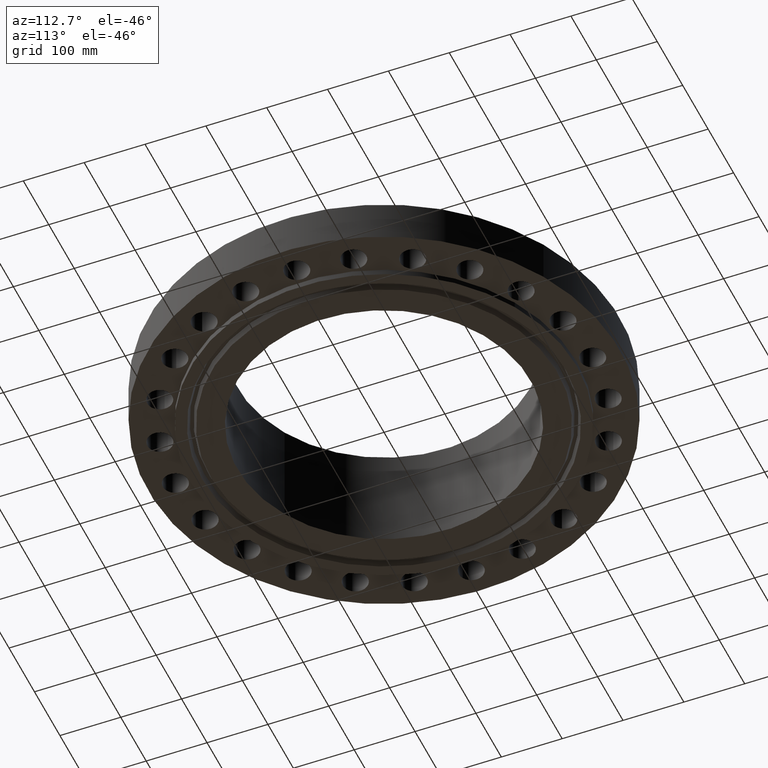
[diagram: clean part render]
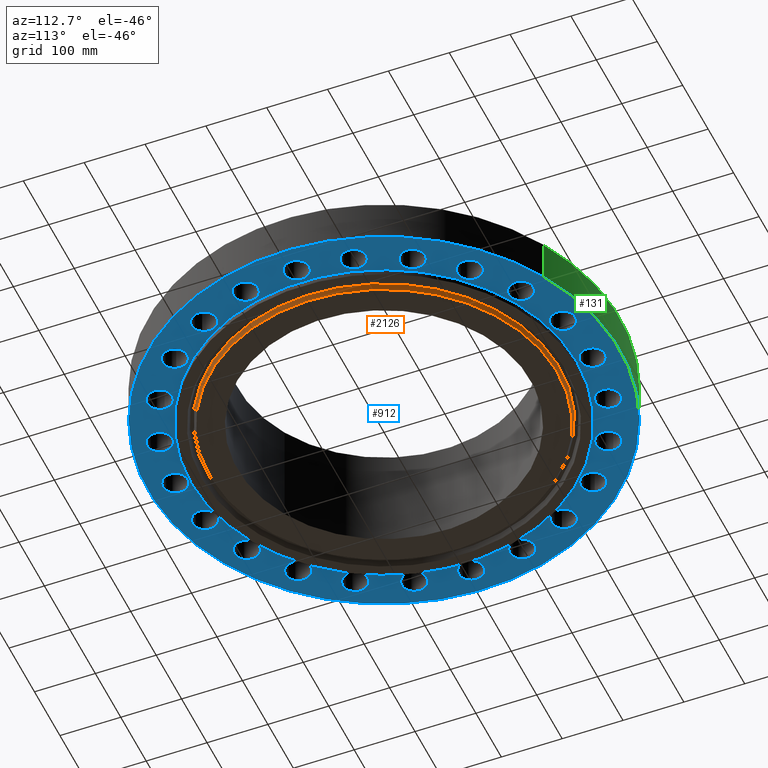
[diagram: same view with three faces highlighted in distinct colors, each labeled with its STEP entity id]
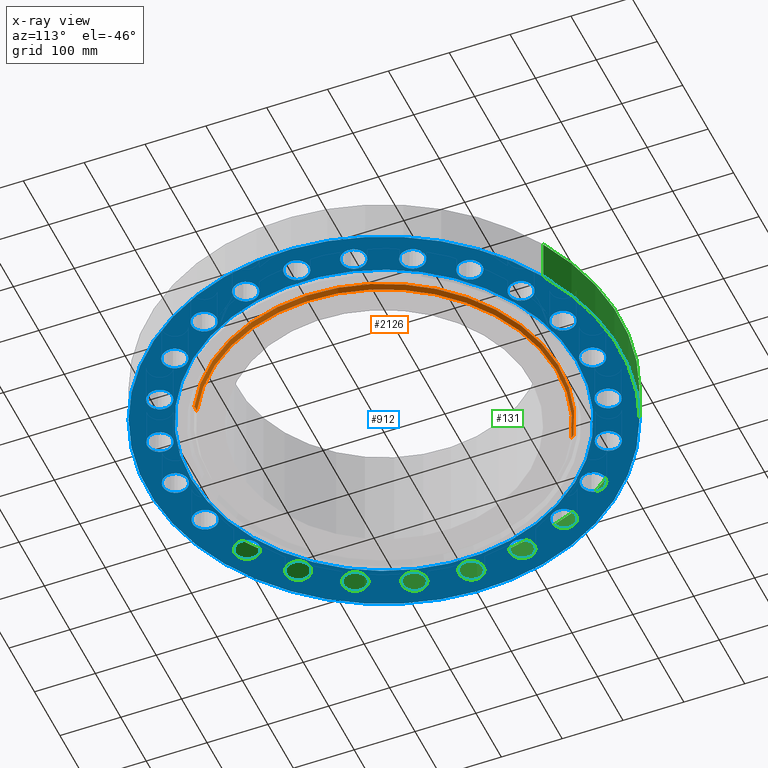
[diagram: x-ray of the same camera — body ghosted, the three highlighted faces saturated]
A machine part, auxiliary view with three faces highlighted in distinct colors.
The next image is the same camera in x-ray (body ghosted, the three faces saturated) — at least one of them is partly hidden behind the body in this view.
Their STEP definitions:

[orange] entity #2126 — the highlighted conical surface has half-angle 23 deg.
#1932=AXIS2_PLACEMENT_3D('Circle Axis2P3D',#1930,#1931,$) ;
#2076=AXIS2_PLACEMENT_3D('Circle Axis2P3D',#2074,#2075,$) ;
#2108=AXIS2_PLACEMENT_3D('Cone Axis2P3D',#2105,#2106,#2107) ;
#1930=CARTESIAN_POINT('Axis2P3D Location',(-1.1189649382E-015,0.,-0.375000000001)) ;
#1934=CARTESIAN_POINT('Vertex',(-5.38610621347,9.8592012916,-0.375000000001)) ;
#1936=CARTESIAN_POINT('Vertex',(5.38610621347,-9.8592012916,-0.375000000001)) ;
#2071=CARTESIAN_POINT('Vertex',(5.45460895105,-9.98459471164,-0.0383839389053)) ;
#2074=CARTESIAN_POINT('Axis2P3D Location',(0.,0.,-0.0383839389053)) ;
#2078=CARTESIAN_POINT('Vertex',(-5.45460895105,9.98459471164,-0.0383839389053)) ;
#2105=CARTESIAN_POINT('Axis2P3D Location',(0.,0.,-0.435000000002)) ;
#2110=CARTESIAN_POINT('Line Origine',(-5.42035758226,9.92189800162,-0.206691969453)) ;
#2115=CARTESIAN_POINT('Line Origine',(5.42035758226,-9.92189800162,-0.206691969453)) ;
#1931=DIRECTION('Axis2P3D Direction',(0.,0.,-0.0393700787402)) ;
#2075=DIRECTION('Axis2P3D Direction',(0.,0.,0.0393700787402)) ;
#2106=DIRECTION('Axis2P3D Direction',(0.,0.,0.0393700787402)) ;
#2107=DIRECTION('Axis2P3D XDirection',(-0.0188750212049,0.0345504945626,0.)) ;
#2111=DIRECTION('Vector Direction',(-0.00737505833565,0.0134999537303,0.0362403485611)) ;
#2116=DIRECTION('Vector Direction',(0.00737505833565,-0.0134999537303,0.0362403485611)) ;
#2112=VECTOR('Line Direction',#2111,0.0393700787402) ;
#2117=VECTOR('Line Direction',#2116,0.0393700787402) ;
#2121=ORIENTED_EDGE('',*,*,#2114,.F.) ;
#2122=ORIENTED_EDGE('',*,*,#2080,.F.) ;
#2123=ORIENTED_EDGE('',*,*,#2119,.T.) ;
#2124=ORIENTED_EDGE('',*,*,#1938,.F.) ;
#2126=ADVANCED_FACE('PartBody',(#2125),#2109,.T.) ;
#1933=CIRCLE('generated circle',#1932,11.2345) ;
#2077=CIRCLE('generated circle',#2076,11.3773850407) ;
#2109=CONICAL_SURFACE('Cone',#2108,11.2090315111,0.401425727959) ;
#1938=EDGE_CURVE('',#1935,#1937,#1933,.T.) ;
#2080=EDGE_CURVE('',#2072,#2079,#2077,.T.) ;
#2114=EDGE_CURVE('',#2079,#1935,#2113,.F.) ;
#2119=EDGE_CURVE('',#2072,#1937,#2118,.F.) ;
#2120=EDGE_LOOP('',(#2121,#2122,#2123,#2124)) ;
#2125=FACE_OUTER_BOUND('',#2120,.T.) ;
#2113=LINE('Line',#2110,#2112) ;
#2118=LINE('Line',#2115,#2117) ;
#1935=VERTEX_POINT('',#1934) ;
#1937=VERTEX_POINT('',#1936) ;
#2072=VERTEX_POINT('',#2071) ;
#2079=VERTEX_POINT('',#2078) ;

[blue] entity #912 — the highlighted planar face has unit normal (0, 0, -1).
#51=AXIS2_PLACEMENT_3D('Circle Axis2P3D',#49,#50,$) ;
#77=AXIS2_PLACEMENT_3D('Circle Axis2P3D',#75,#76,$) ;
#99=AXIS2_PLACEMENT_3D('Circle Axis2P3D',#97,#98,$) ;
#134=AXIS2_PLACEMENT_3D('Circle Axis2P3D',#132,#133,$) ;
#447=AXIS2_PLACEMENT_3D('Circle Axis2P3D',#445,#446,$) ;
#471=AXIS2_PLACEMENT_3D('Circle Axis2P3D',#469,#470,$) ;
#484=AXIS2_PLACEMENT_3D('Plane Axis2P3D',#481,#482,#483) ;
#500=AXIS2_PLACEMENT_3D('Circle Axis2P3D',#498,#499,$) ;
#509=AXIS2_PLACEMENT_3D('Circle Axis2P3D',#507,#508,$) ;
#518=AXIS2_PLACEMENT_3D('Circle Axis2P3D',#516,#517,$) ;
#527=AXIS2_PLACEMENT_3D('Circle Axis2P3D',#525,#526,$) ;
#536=AXIS2_PLACEMENT_3D('Circle Axis2P3D',#534,#535,$) ;
#545=AXIS2_PLACEMENT_3D('Circle Axis2P3D',#543,#544,$) ;
#554=AXIS2_PLACEMENT_3D('Circle Axis2P3D',#552,#553,$) ;
#563=AXIS2_PLACEMENT_3D('Circle Axis2P3D',#561,#562,$) ;
#572=AXIS2_PLACEMENT_3D('Circle Axis2P3D',#570,#571,$) ;
#581=AXIS2_PLACEMENT_3D('Circle Axis2P3D',#579,#580,$) ;
#590=AXIS2_PLACEMENT_3D('Circle Axis2P3D',#588,#589,$) ;
#599=AXIS2_PLACEMENT_3D('Circle Axis2P3D',#597,#598,$) ;
#608=AXIS2_PLACEMENT_3D('Circle Axis2P3D',#606,#607,$) ;
#617=AXIS2_PLACEMENT_3D('Circle Axis2P3D',#615,#616,$) ;
#626=AXIS2_PLACEMENT_3D('Circle Axis2P3D',#624,#625,$) ;
#635=AXIS2_PLACEMENT_3D('Circle Axis2P3D',#633,#634,$) ;
#644=AXIS2_PLACEMENT_3D('Circle Axis2P3D',#642,#643,$) ;
#653=AXIS2_PLACEMENT_3D('Circle Axis2P3D',#651,#652,$) ;
#662=AXIS2_PLACEMENT_3D('Circle Axis2P3D',#660,#661,$) ;
#671=AXIS2_PLACEMENT_3D('Circle Axis2P3D',#669,#670,$) ;
#680=AXIS2_PLACEMENT_3D('Circle Axis2P3D',#678,#679,$) ;
#689=AXIS2_PLACEMENT_3D('Circle Axis2P3D',#687,#688,$) ;
#698=AXIS2_PLACEMENT_3D('Circle Axis2P3D',#696,#697,$) ;
#707=AXIS2_PLACEMENT_3D('Circle Axis2P3D',#705,#706,$) ;
#716=AXIS2_PLACEMENT_3D('Circle Axis2P3D',#714,#715,$) ;
#725=AXIS2_PLACEMENT_3D('Circle Axis2P3D',#723,#724,$) ;
#734=AXIS2_PLACEMENT_3D('Circle Axis2P3D',#732,#733,$) ;
#743=AXIS2_PLACEMENT_3D('Circle Axis2P3D',#741,#742,$) ;
#752=AXIS2_PLACEMENT_3D('Circle Axis2P3D',#750,#751,$) ;
#761=AXIS2_PLACEMENT_3D('Circle Axis2P3D',#759,#760,$) ;
#770=AXIS2_PLACEMENT_3D('Circle Axis2P3D',#768,#769,$) ;
#779=AXIS2_PLACEMENT_3D('Circle Axis2P3D',#777,#778,$) ;
#788=AXIS2_PLACEMENT_3D('Circle Axis2P3D',#786,#787,$) ;
#797=AXIS2_PLACEMENT_3D('Circle Axis2P3D',#795,#796,$) ;
#806=AXIS2_PLACEMENT_3D('Circle Axis2P3D',#804,#805,$) ;
#815=AXIS2_PLACEMENT_3D('Circle Axis2P3D',#813,#814,$) ;
#824=AXIS2_PLACEMENT_3D('Circle Axis2P3D',#822,#823,$) ;
#833=AXIS2_PLACEMENT_3D('Circle Axis2P3D',#831,#832,$) ;
#842=AXIS2_PLACEMENT_3D('Circle Axis2P3D',#840,#841,$) ;
#851=AXIS2_PLACEMENT_3D('Circle Axis2P3D',#849,#850,$) ;
#860=AXIS2_PLACEMENT_3D('Circle Axis2P3D',#858,#859,$) ;
#869=AXIS2_PLACEMENT_3D('Circle Axis2P3D',#867,#868,$) ;
#878=AXIS2_PLACEMENT_3D('Circle Axis2P3D',#876,#877,$) ;
#887=AXIS2_PLACEMENT_3D('Circle Axis2P3D',#885,#886,$) ;
#896=AXIS2_PLACEMENT_3D('Circle Axis2P3D',#894,#895,$) ;
#905=AXIS2_PLACEMENT_3D('Circle Axis2P3D',#903,#904,$) ;
#44=CARTESIAN_POINT('Vertex',(-0.710841875134,13.8883346863,0.)) ;
#49=CARTESIAN_POINT('Axis2P3D Location',(0.,13.5000000001,0.)) ;
#53=CARTESIAN_POINT('Vertex',(0.710841875134,13.1116653138,0.)) ;
#75=CARTESIAN_POINT('Axis2P3D Location',(0.,13.5000000001,0.)) ;
#97=CARTESIAN_POINT('Axis2P3D Location',(0.,0.,1.67844740731E-015)) ;
#101=CARTESIAN_POINT('Vertex',(-7.31123946374,-13.3831340689,1.67844740731E-015)) ;
#103=CARTESIAN_POINT('Vertex',(7.31123946374,13.3831340689,1.67844740731E-015)) ;
#132=CARTESIAN_POINT('Axis2P3D Location',(0.,0.,1.67844740731E-015)) ;
#442=CARTESIAN_POINT('Vertex',(-5.99281923258,-10.9697820237,1.67844740731E-015)) ;
#445=CARTESIAN_POINT('Axis2P3D Location',(0.,0.,1.67844740731E-015)) ;
#449=CARTESIAN_POINT('Vertex',(5.99281923258,10.9697820237,1.67844740731E-015)) ;
#469=CARTESIAN_POINT('Axis2P3D Location',(0.,0.,1.67844740731E-015)) ;
#481=CARTESIAN_POINT('Axis2P3D Location',(0.,12.5000000001,0.)) ;
#498=CARTESIAN_POINT('Axis2P3D Location',(3.4940571089,13.039998655,0.)) ;
#502=CARTESIAN_POINT('Vertex',(2.90794499598,13.599080573,0.)) ;
#504=CARTESIAN_POINT('Vertex',(4.08016922182,12.4809167369,0.)) ;
#507=CARTESIAN_POINT('Axis2P3D Location',(3.4940571089,13.039998655,0.)) ;
#516=CARTESIAN_POINT('Axis2P3D Location',(6.75000000003,11.6913429511,0.)) ;
#520=CARTESIAN_POINT('Vertex',(6.32856022122,12.3830715922,0.)) ;
#522=CARTESIAN_POINT('Vertex',(7.17143977883,10.9996143101,0.)) ;
#525=CARTESIAN_POINT('Axis2P3D Location',(6.75000000003,11.6913429511,0.)) ;
#534=CARTESIAN_POINT('Axis2P3D Location',(9.54594154606,9.54594154606,0.)) ;
#538=CARTESIAN_POINT('Vertex',(9.31789452583,10.3231767463,0.)) ;
#540=CARTESIAN_POINT('Vertex',(9.77398856628,8.76870634577,0.)) ;
#543=CARTESIAN_POINT('Axis2P3D Location',(9.54594154606,9.54594154606,0.)) ;
#552=CARTESIAN_POINT('Axis2P3D Location',(11.6913429511,6.75000000003,0.)) ;
#556=CARTESIAN_POINT('Vertex',(11.6722297171,7.5597744651,0.)) ;
#558=CARTESIAN_POINT('Vertex',(11.7104561852,5.94022553495,0.)) ;
#561=CARTESIAN_POINT('Axis2P3D Location',(11.6913429511,6.75000000003,0.)) ;
#570=CARTESIAN_POINT('Axis2P3D Location',(13.039998655,3.4940571089,0.)) ;
#574=CARTESIAN_POINT('Vertex',(13.2311217423,4.28118604718,0.)) ;
#576=CARTESIAN_POINT('Vertex',(12.8488755676,2.70692817062,0.)) ;
#579=CARTESIAN_POINT('Axis2P3D Location',(13.039998655,3.4940571089,0.)) ;
#588=CARTESIAN_POINT('Axis2P3D Location',(13.5000000001,-2.23792987641E-015,0.)) ;
#592=CARTESIAN_POINT('Vertex',(13.8883346863,0.710841875134,0.)) ;
#594=CARTESIAN_POINT('Vertex',(13.1116653138,-0.710841875134,0.)) ;
#597=CARTESIAN_POINT('Axis2P3D Location',(13.5000000001,-2.23792987641E-015,0.)) ;
#606=CARTESIAN_POINT('Axis2P3D Location',(13.039998655,-3.4940571089,0.)) ;
#610=CARTESIAN_POINT('Vertex',(13.599080573,-2.90794499598,0.)) ;
#612=CARTESIAN_POINT('Vertex',(12.4809167369,-4.08016922182,-1.1189649382E-015)) ;
#615=CARTESIAN_POINT('Axis2P3D Location',(13.039998655,-3.4940571089,0.)) ;
#624=CARTESIAN_POINT('Axis2P3D Location',(11.6913429511,-6.75000000003,0.)) ;
#628=CARTESIAN_POINT('Vertex',(12.3830715922,-6.32856022122,0.)) ;
#630=CARTESIAN_POINT('Vertex',(10.9996143101,-7.17143977883,-2.23792987641E-015)) ;
#633=CARTESIAN_POINT('Axis2P3D Location',(11.6913429511,-6.75000000003,0.)) ;
#642=CARTESIAN_POINT('Axis2P3D Location',(9.54594154606,-9.54594154606,0.)) ;
#646=CARTESIAN_POINT('Vertex',(10.3231767463,-9.31789452583,0.)) ;
#648=CARTESIAN_POINT('Vertex',(8.76870634577,-9.77398856628,0.)) ;
#651=CARTESIAN_POINT('Axis2P3D Location',(9.54594154606,-9.54594154606,0.)) ;
#660=CARTESIAN_POINT('Axis2P3D Location',(6.75000000003,-11.6913429511,0.)) ;
#664=CARTESIAN_POINT('Vertex',(7.5597744651,-11.6722297171,0.)) ;
#666=CARTESIAN_POINT('Vertex',(5.94022553495,-11.7104561852,0.)) ;
#669=CARTESIAN_POINT('Axis2P3D Location',(6.75000000003,-11.6913429511,0.)) ;
#678=CARTESIAN_POINT('Axis2P3D Location',(3.4940571089,-13.039998655,0.)) ;
#682=CARTESIAN_POINT('Vertex',(4.28118604718,-13.2311217423,0.)) ;
#684=CARTESIAN_POINT('Vertex',(2.70692817062,-12.8488755676,0.)) ;
#687=CARTESIAN_POINT('Axis2P3D Location',(3.4940571089,-13.039998655,0.)) ;
#696=CARTESIAN_POINT('Axis2P3D Location',(1.60851209867E-015,-13.5000000001,0.)) ;
#700=CARTESIAN_POINT('Vertex',(0.710841875134,-13.8883346863,0.)) ;
#702=CARTESIAN_POINT('Vertex',(-0.710841875134,-13.1116653138,0.)) ;
#705=CARTESIAN_POINT('Axis2P3D Location',(1.67844740731E-015,-13.5000000001,0.)) ;
#714=CARTESIAN_POINT('Axis2P3D Location',(-3.4940571089,-13.039998655,0.)) ;
#718=CARTESIAN_POINT('Vertex',(-2.90794499598,-13.599080573,0.)) ;
#720=CARTESIAN_POINT('Vertex',(-4.08016922182,-12.4809167369,0.)) ;
#723=CARTESIAN_POINT('Axis2P3D Location',(-3.4940571089,-13.039998655,0.)) ;
#732=CARTESIAN_POINT('Axis2P3D Location',(-6.75000000003,-11.6913429511,0.)) ;
#736=CARTESIAN_POINT('Vertex',(-6.32856022122,-12.3830715922,0.)) ;
#738=CARTESIAN_POINT('Vertex',(-7.17143977883,-10.9996143101,0.)) ;
#741=CARTESIAN_POINT('Axis2P3D Location',(-6.75000000003,-11.6913429511,0.)) ;
#750=CARTESIAN_POINT('Axis2P3D Location',(-9.54594154606,-9.54594154606,0.)) ;
#754=CARTESIAN_POINT('Vertex',(-9.31789452583,-10.3231767463,0.)) ;
#756=CARTESIAN_POINT('Vertex',(-9.77398856628,-8.76870634577,0.)) ;
#759=CARTESIAN_POINT('Axis2P3D Location',(-9.54594154606,-9.54594154606,0.)) ;
#768=CARTESIAN_POINT('Axis2P3D Location',(-11.6913429511,-6.75000000003,0.)) ;
#772=CARTESIAN_POINT('Vertex',(-11.6722297171,-7.5597744651,0.)) ;
#774=CARTESIAN_POINT('Vertex',(-11.7104561852,-5.94022553495,0.)) ;
#777=CARTESIAN_POINT('Axis2P3D Location',(-11.6913429511,-6.75000000003,0.)) ;
#786=CARTESIAN_POINT('Axis2P3D Location',(-13.039998655,-3.4940571089,0.)) ;
#790=CARTESIAN_POINT('Vertex',(-13.2311217423,-4.28118604718,0.)) ;
#792=CARTESIAN_POINT('Vertex',(-12.8488755676,-2.70692817062,0.)) ;
#795=CARTESIAN_POINT('Axis2P3D Location',(-13.039998655,-3.4940571089,0.)) ;
#804=CARTESIAN_POINT('Axis2P3D Location',(-13.5000000001,-2.23792987641E-015,0.)) ;
#808=CARTESIAN_POINT('Vertex',(-13.8883346863,-0.710841875134,0.)) ;
#810=CARTESIAN_POINT('Vertex',(-13.1116653138,0.710841875134,0.)) ;
#813=CARTESIAN_POINT('Axis2P3D Location',(-13.5000000001,-2.23792987641E-015,0.)) ;
#822=CARTESIAN_POINT('Axis2P3D Location',(-13.039998655,3.4940571089,0.)) ;
#826=CARTESIAN_POINT('Vertex',(-13.599080573,2.90794499598,0.)) ;
#828=CARTESIAN_POINT('Vertex',(-12.4809167369,4.08016922182,0.)) ;
#831=CARTESIAN_POINT('Axis2P3D Location',(-13.039998655,3.4940571089,0.)) ;
#840=CARTESIAN_POINT('Axis2P3D Location',(-11.6913429511,6.75000000003,0.)) ;
#844=CARTESIAN_POINT('Vertex',(-12.3830715922,6.32856022122,0.)) ;
#846=CARTESIAN_POINT('Vertex',(-10.9996143101,7.17143977883,0.)) ;
#849=CARTESIAN_POINT('Axis2P3D Location',(-11.6913429511,6.75000000003,0.)) ;
#858=CARTESIAN_POINT('Axis2P3D Location',(-9.54594154606,9.54594154606,0.)) ;
#862=CARTESIAN_POINT('Vertex',(-10.3231767463,9.31789452583,0.)) ;
#864=CARTESIAN_POINT('Vertex',(-8.76870634577,9.77398856628,0.)) ;
#867=CARTESIAN_POINT('Axis2P3D Location',(-9.54594154606,9.54594154606,0.)) ;
#876=CARTESIAN_POINT('Axis2P3D Location',(-6.75000000003,11.6913429511,0.)) ;
#880=CARTESIAN_POINT('Vertex',(-7.5597744651,11.6722297171,0.)) ;
#882=CARTESIAN_POINT('Vertex',(-5.94022553495,11.7104561852,0.)) ;
#885=CARTESIAN_POINT('Axis2P3D Location',(-6.75000000003,11.6913429511,0.)) ;
#894=CARTESIAN_POINT('Axis2P3D Location',(-3.4940571089,13.039998655,0.)) ;
#898=CARTESIAN_POINT('Vertex',(-4.28118604718,13.2311217423,0.)) ;
#900=CARTESIAN_POINT('Vertex',(-2.70692817062,12.8488755676,0.)) ;
#903=CARTESIAN_POINT('Axis2P3D Location',(-3.4940571089,13.039998655,0.)) ;
#50=DIRECTION('Axis2P3D Direction',(0.,-0.,-0.0393700787402)) ;
#76=DIRECTION('Axis2P3D Direction',(0.,-0.,-0.0393700787402)) ;
#98=DIRECTION('Axis2P3D Direction',(0.,0.,-0.0393700787402)) ;
#133=DIRECTION('Axis2P3D Direction',(0.,0.,-0.0393700787402)) ;
#446=DIRECTION('Axis2P3D Direction',(0.,0.,-0.0393700787402)) ;
#470=DIRECTION('Axis2P3D Direction',(0.,0.,-0.0393700787402)) ;
#482=DIRECTION('Axis2P3D Direction',(0.,0.,-0.0393700787402)) ;
#483=DIRECTION('Axis2P3D XDirection',(0.0393700787402,0.,0.)) ;
#499=DIRECTION('Axis2P3D Direction',(0.,0.,-0.0393700787402)) ;
#508=DIRECTION('Axis2P3D Direction',(0.,0.,-0.0393700787402)) ;
#517=DIRECTION('Axis2P3D Direction',(0.,0.,-0.0393700787402)) ;
#526=DIRECTION('Axis2P3D Direction',(0.,0.,-0.0393700787402)) ;
#535=DIRECTION('Axis2P3D Direction',(0.,0.,-0.0393700787402)) ;
#544=DIRECTION('Axis2P3D Direction',(0.,0.,-0.0393700787402)) ;
#553=DIRECTION('Axis2P3D Direction',(0.,0.,-0.0393700787402)) ;
#562=DIRECTION('Axis2P3D Direction',(0.,0.,-0.0393700787402)) ;
#571=DIRECTION('Axis2P3D Direction',(0.,0.,-0.0393700787402)) ;
#580=DIRECTION('Axis2P3D Direction',(0.,0.,-0.0393700787402)) ;
#589=DIRECTION('Axis2P3D Direction',(0.,0.,-0.0393700787402)) ;
#598=DIRECTION('Axis2P3D Direction',(0.,0.,-0.0393700787402)) ;
#607=DIRECTION('Axis2P3D Direction',(0.,0.,-0.0393700787402)) ;
#616=DIRECTION('Axis2P3D Direction',(0.,0.,-0.0393700787402)) ;
#625=DIRECTION('Axis2P3D Direction',(0.,0.,-0.0393700787402)) ;
#634=DIRECTION('Axis2P3D Direction',(0.,0.,-0.0393700787402)) ;
#643=DIRECTION('Axis2P3D Direction',(0.,0.,-0.0393700787402)) ;
#652=DIRECTION('Axis2P3D Direction',(0.,0.,-0.0393700787402)) ;
#661=DIRECTION('Axis2P3D Direction',(0.,0.,-0.0393700787402)) ;
#670=DIRECTION('Axis2P3D Direction',(0.,0.,-0.0393700787402)) ;
#679=DIRECTION('Axis2P3D Direction',(0.,0.,-0.0393700787402)) ;
#688=DIRECTION('Axis2P3D Direction',(0.,0.,-0.0393700787402)) ;
#697=DIRECTION('Axis2P3D Direction',(0.,0.,-0.0393700787402)) ;
#706=DIRECTION('Axis2P3D Direction',(0.,0.,-0.0393700787402)) ;
#715=DIRECTION('Axis2P3D Direction',(0.,0.,-0.0393700787402)) ;
#724=DIRECTION('Axis2P3D Direction',(0.,0.,-0.0393700787402)) ;
#733=DIRECTION('Axis2P3D Direction',(0.,0.,-0.0393700787402)) ;
#742=DIRECTION('Axis2P3D Direction',(0.,0.,-0.0393700787402)) ;
#751=DIRECTION('Axis2P3D Direction',(0.,0.,-0.0393700787402)) ;
#760=DIRECTION('Axis2P3D Direction',(0.,0.,-0.0393700787402)) ;
#769=DIRECTION('Axis2P3D Direction',(0.,0.,-0.0393700787402)) ;
#778=DIRECTION('Axis2P3D Direction',(0.,0.,-0.0393700787402)) ;
#787=DIRECTION('Axis2P3D Direction',(0.,0.,-0.0393700787402)) ;
#796=DIRECTION('Axis2P3D Direction',(0.,0.,-0.0393700787402)) ;
#805=DIRECTION('Axis2P3D Direction',(0.,0.,-0.0393700787402)) ;
#814=DIRECTION('Axis2P3D Direction',(0.,0.,-0.0393700787402)) ;
#823=DIRECTION('Axis2P3D Direction',(0.,0.,-0.0393700787402)) ;
#832=DIRECTION('Axis2P3D Direction',(0.,0.,-0.0393700787402)) ;
#841=DIRECTION('Axis2P3D Direction',(0.,0.,-0.0393700787402)) ;
#850=DIRECTION('Axis2P3D Direction',(0.,0.,-0.0393700787402)) ;
#859=DIRECTION('Axis2P3D Direction',(0.,0.,-0.0393700787402)) ;
#868=DIRECTION('Axis2P3D Direction',(0.,0.,-0.0393700787402)) ;
#877=DIRECTION('Axis2P3D Direction',(0.,0.,-0.0393700787402)) ;
#886=DIRECTION('Axis2P3D Direction',(0.,0.,-0.0393700787402)) ;
#895=DIRECTION('Axis2P3D Direction',(0.,0.,-0.0393700787402)) ;
#904=DIRECTION('Axis2P3D Direction',(0.,0.,-0.0393700787402)) ;
#487=ORIENTED_EDGE('',*,*,#105,.T.) ;
#488=ORIENTED_EDGE('',*,*,#136,.T.) ;
#491=ORIENTED_EDGE('',*,*,#79,.F.) ;
#492=ORIENTED_EDGE('',*,*,#55,.F.) ;
#495=ORIENTED_EDGE('',*,*,#473,.F.) ;
#496=ORIENTED_EDGE('',*,*,#451,.F.) ;
#513=ORIENTED_EDGE('',*,*,#506,.F.) ;
#514=ORIENTED_EDGE('',*,*,#511,.F.) ;
#531=ORIENTED_EDGE('',*,*,#524,.F.) ;
#532=ORIENTED_EDGE('',*,*,#529,.F.) ;
#549=ORIENTED_EDGE('',*,*,#542,.F.) ;
#550=ORIENTED_EDGE('',*,*,#547,.F.) ;
#567=ORIENTED_EDGE('',*,*,#560,.F.) ;
#568=ORIENTED_EDGE('',*,*,#565,.F.) ;
#585=ORIENTED_EDGE('',*,*,#578,.F.) ;
#586=ORIENTED_EDGE('',*,*,#583,.F.) ;
#603=ORIENTED_EDGE('',*,*,#596,.F.) ;
#604=ORIENTED_EDGE('',*,*,#601,.F.) ;
#621=ORIENTED_EDGE('',*,*,#614,.F.) ;
#622=ORIENTED_EDGE('',*,*,#619,.F.) ;
#639=ORIENTED_EDGE('',*,*,#632,.F.) ;
#640=ORIENTED_EDGE('',*,*,#637,.F.) ;
#657=ORIENTED_EDGE('',*,*,#650,.F.) ;
#658=ORIENTED_EDGE('',*,*,#655,.F.) ;
#675=ORIENTED_EDGE('',*,*,#668,.F.) ;
#676=ORIENTED_EDGE('',*,*,#673,.F.) ;
#693=ORIENTED_EDGE('',*,*,#686,.F.) ;
#694=ORIENTED_EDGE('',*,*,#691,.F.) ;
#711=ORIENTED_EDGE('',*,*,#704,.F.) ;
#712=ORIENTED_EDGE('',*,*,#709,.F.) ;
#729=ORIENTED_EDGE('',*,*,#722,.F.) ;
#730=ORIENTED_EDGE('',*,*,#727,.F.) ;
#747=ORIENTED_EDGE('',*,*,#740,.F.) ;
#748=ORIENTED_EDGE('',*,*,#745,.F.) ;
#765=ORIENTED_EDGE('',*,*,#758,.F.) ;
#766=ORIENTED_EDGE('',*,*,#763,.F.) ;
#783=ORIENTED_EDGE('',*,*,#776,.F.) ;
#784=ORIENTED_EDGE('',*,*,#781,.F.) ;
#801=ORIENTED_EDGE('',*,*,#794,.F.) ;
#802=ORIENTED_EDGE('',*,*,#799,.F.) ;
#819=ORIENTED_EDGE('',*,*,#812,.F.) ;
#820=ORIENTED_EDGE('',*,*,#817,.F.) ;
#837=ORIENTED_EDGE('',*,*,#830,.F.) ;
#838=ORIENTED_EDGE('',*,*,#835,.F.) ;
#855=ORIENTED_EDGE('',*,*,#848,.F.) ;
#856=ORIENTED_EDGE('',*,*,#853,.F.) ;
#873=ORIENTED_EDGE('',*,*,#866,.F.) ;
#874=ORIENTED_EDGE('',*,*,#871,.F.) ;
#891=ORIENTED_EDGE('',*,*,#884,.F.) ;
#892=ORIENTED_EDGE('',*,*,#889,.F.) ;
#909=ORIENTED_EDGE('',*,*,#902,.F.) ;
#910=ORIENTED_EDGE('',*,*,#907,.F.) ;
#493=FACE_BOUND('',#490,.T.) ;
#497=FACE_BOUND('',#494,.T.) ;
#515=FACE_BOUND('',#512,.T.) ;
#533=FACE_BOUND('',#530,.T.) ;
#551=FACE_BOUND('',#548,.T.) ;
#569=FACE_BOUND('',#566,.T.) ;
#587=FACE_BOUND('',#584,.T.) ;
#605=FACE_BOUND('',#602,.T.) ;
#623=FACE_BOUND('',#620,.T.) ;
#641=FACE_BOUND('',#638,.T.) ;
#659=FACE_BOUND('',#656,.T.) ;
#677=FACE_BOUND('',#674,.T.) ;
#695=FACE_BOUND('',#692,.T.) ;
#713=FACE_BOUND('',#710,.T.) ;
#731=FACE_BOUND('',#728,.T.) ;
#749=FACE_BOUND('',#746,.T.) ;
#767=FACE_BOUND('',#764,.T.) ;
#785=FACE_BOUND('',#782,.T.) ;
#803=FACE_BOUND('',#800,.T.) ;
#821=FACE_BOUND('',#818,.T.) ;
#839=FACE_BOUND('',#836,.T.) ;
#857=FACE_BOUND('',#854,.T.) ;
#875=FACE_BOUND('',#872,.T.) ;
#893=FACE_BOUND('',#890,.T.) ;
#911=FACE_BOUND('',#908,.T.) ;
#912=ADVANCED_FACE('PartBody',(#489,#493,#497,#515,#533,#551,#569,#587,#605,#623,#641,#659,#677,#695,#713,#731,#749,#767,#785,#803,#821,#839,#857,#875,#893,#911),#485,.T.) ;
#52=CIRCLE('generated circle',#51,0.810000000003) ;
#78=CIRCLE('generated circle',#77,0.810000000003) ;
#100=CIRCLE('generated circle',#99,15.2500000001) ;
#135=CIRCLE('generated circle',#134,15.2500000001) ;
#448=CIRCLE('generated circle',#447,12.5000000001) ;
#472=CIRCLE('generated circle',#471,12.5000000001) ;
#501=CIRCLE('generated circle',#500,0.810000000003) ;
#510=CIRCLE('generated circle',#509,0.810000000003) ;
#519=CIRCLE('generated circle',#518,0.810000000003) ;
#528=CIRCLE('generated circle',#527,0.810000000003) ;
#537=CIRCLE('generated circle',#536,0.810000000003) ;
#546=CIRCLE('generated circle',#545,0.810000000003) ;
#555=CIRCLE('generated circle',#554,0.810000000003) ;
#564=CIRCLE('generated circle',#563,0.810000000003) ;
#573=CIRCLE('generated circle',#572,0.810000000003) ;
#582=CIRCLE('generated circle',#581,0.810000000003) ;
#591=CIRCLE('generated circle',#590,0.810000000003) ;
#600=CIRCLE('generated circle',#599,0.810000000003) ;
#609=CIRCLE('generated circle',#608,0.810000000003) ;
#618=CIRCLE('generated circle',#617,0.810000000003) ;
#627=CIRCLE('generated circle',#626,0.810000000003) ;
#636=CIRCLE('generated circle',#635,0.810000000003) ;
#645=CIRCLE('generated circle',#644,0.810000000003) ;
#654=CIRCLE('generated circle',#653,0.810000000003) ;
#663=CIRCLE('generated circle',#662,0.810000000003) ;
#672=CIRCLE('generated circle',#671,0.810000000003) ;
#681=CIRCLE('generated circle',#680,0.810000000003) ;
#690=CIRCLE('generated circle',#689,0.810000000003) ;
#699=CIRCLE('generated circle',#698,0.810000000003) ;
#708=CIRCLE('generated circle',#707,0.810000000003) ;
#717=CIRCLE('generated circle',#716,0.810000000003) ;
#726=CIRCLE('generated circle',#725,0.810000000003) ;
#735=CIRCLE('generated circle',#734,0.810000000003) ;
#744=CIRCLE('generated circle',#743,0.810000000003) ;
#753=CIRCLE('generated circle',#752,0.810000000003) ;
#762=CIRCLE('generated circle',#761,0.810000000003) ;
#771=CIRCLE('generated circle',#770,0.810000000003) ;
#780=CIRCLE('generated circle',#779,0.810000000003) ;
#789=CIRCLE('generated circle',#788,0.810000000003) ;
#798=CIRCLE('generated circle',#797,0.810000000003) ;
#807=CIRCLE('generated circle',#806,0.810000000003) ;
#816=CIRCLE('generated circle',#815,0.810000000003) ;
#825=CIRCLE('generated circle',#824,0.810000000003) ;
#834=CIRCLE('generated circle',#833,0.810000000003) ;
#843=CIRCLE('generated circle',#842,0.810000000003) ;
#852=CIRCLE('generated circle',#851,0.810000000003) ;
#861=CIRCLE('generated circle',#860,0.810000000003) ;
#870=CIRCLE('generated circle',#869,0.810000000003) ;
#879=CIRCLE('generated circle',#878,0.810000000003) ;
#888=CIRCLE('generated circle',#887,0.810000000003) ;
#897=CIRCLE('generated circle',#896,0.810000000003) ;
#906=CIRCLE('generated circle',#905,0.810000000003) ;
#55=EDGE_CURVE('',#45,#54,#52,.T.) ;
#79=EDGE_CURVE('',#54,#45,#78,.T.) ;
#105=EDGE_CURVE('',#102,#104,#100,.T.) ;
#136=EDGE_CURVE('',#104,#102,#135,.T.) ;
#451=EDGE_CURVE('',#443,#450,#448,.T.) ;
#473=EDGE_CURVE('',#450,#443,#472,.T.) ;
#506=EDGE_CURVE('',#503,#505,#501,.T.) ;
#511=EDGE_CURVE('',#505,#503,#510,.T.) ;
#524=EDGE_CURVE('',#521,#523,#519,.T.) ;
#529=EDGE_CURVE('',#523,#521,#528,.T.) ;
#542=EDGE_CURVE('',#539,#541,#537,.T.) ;
#547=EDGE_CURVE('',#541,#539,#546,.T.) ;
#560=EDGE_CURVE('',#557,#559,#555,.T.) ;
#565=EDGE_CURVE('',#559,#557,#564,.T.) ;
#578=EDGE_CURVE('',#575,#577,#573,.T.) ;
#583=EDGE_CURVE('',#577,#575,#582,.T.) ;
#596=EDGE_CURVE('',#593,#595,#591,.T.) ;
#601=EDGE_CURVE('',#595,#593,#600,.T.) ;
#614=EDGE_CURVE('',#611,#613,#609,.T.) ;
#619=EDGE_CURVE('',#613,#611,#618,.T.) ;
#632=EDGE_CURVE('',#629,#631,#627,.T.) ;
#637=EDGE_CURVE('',#631,#629,#636,.T.) ;
#650=EDGE_CURVE('',#647,#649,#645,.T.) ;
#655=EDGE_CURVE('',#649,#647,#654,.T.) ;
#668=EDGE_CURVE('',#665,#667,#663,.T.) ;
#673=EDGE_CURVE('',#667,#665,#672,.T.) ;
#686=EDGE_CURVE('',#683,#685,#681,.T.) ;
#691=EDGE_CURVE('',#685,#683,#690,.T.) ;
#704=EDGE_CURVE('',#701,#703,#699,.T.) ;
#709=EDGE_CURVE('',#703,#701,#708,.T.) ;
#722=EDGE_CURVE('',#719,#721,#717,.T.) ;
#727=EDGE_CURVE('',#721,#719,#726,.T.) ;
#740=EDGE_CURVE('',#737,#739,#735,.T.) ;
#745=EDGE_CURVE('',#739,#737,#744,.T.) ;
#758=EDGE_CURVE('',#755,#757,#753,.T.) ;
#763=EDGE_CURVE('',#757,#755,#762,.T.) ;
#776=EDGE_CURVE('',#773,#775,#771,.T.) ;
#781=EDGE_CURVE('',#775,#773,#780,.T.) ;
#794=EDGE_CURVE('',#791,#793,#789,.T.) ;
#799=EDGE_CURVE('',#793,#791,#798,.T.) ;
#812=EDGE_CURVE('',#809,#811,#807,.T.) ;
#817=EDGE_CURVE('',#811,#809,#816,.T.) ;
#830=EDGE_CURVE('',#827,#829,#825,.T.) ;
#835=EDGE_CURVE('',#829,#827,#834,.T.) ;
#848=EDGE_CURVE('',#845,#847,#843,.T.) ;
#853=EDGE_CURVE('',#847,#845,#852,.T.) ;
#866=EDGE_CURVE('',#863,#865,#861,.T.) ;
#871=EDGE_CURVE('',#865,#863,#870,.T.) ;
#884=EDGE_CURVE('',#881,#883,#879,.T.) ;
#889=EDGE_CURVE('',#883,#881,#888,.T.) ;
#902=EDGE_CURVE('',#899,#901,#897,.T.) ;
#907=EDGE_CURVE('',#901,#899,#906,.T.) ;
#486=EDGE_LOOP('',(#487,#488)) ;
#490=EDGE_LOOP('',(#491,#492)) ;
#494=EDGE_LOOP('',(#495,#496)) ;
#512=EDGE_LOOP('',(#513,#514)) ;
#530=EDGE_LOOP('',(#531,#532)) ;
#548=EDGE_LOOP('',(#549,#550)) ;
#566=EDGE_LOOP('',(#567,#568)) ;
#584=EDGE_LOOP('',(#585,#586)) ;
#602=EDGE_LOOP('',(#603,#604)) ;
#620=EDGE_LOOP('',(#621,#622)) ;
#638=EDGE_LOOP('',(#639,#640)) ;
#656=EDGE_LOOP('',(#657,#658)) ;
#674=EDGE_LOOP('',(#675,#676)) ;
#692=EDGE_LOOP('',(#693,#694)) ;
#710=EDGE_LOOP('',(#711,#712)) ;
#728=EDGE_LOOP('',(#729,#730)) ;
#746=EDGE_LOOP('',(#747,#748)) ;
#764=EDGE_LOOP('',(#765,#766)) ;
#782=EDGE_LOOP('',(#783,#784)) ;
#800=EDGE_LOOP('',(#801,#802)) ;
#818=EDGE_LOOP('',(#819,#820)) ;
#836=EDGE_LOOP('',(#837,#838)) ;
#854=EDGE_LOOP('',(#855,#856)) ;
#872=EDGE_LOOP('',(#873,#874)) ;
#890=EDGE_LOOP('',(#891,#892)) ;
#908=EDGE_LOOP('',(#909,#910)) ;
#489=FACE_OUTER_BOUND('',#486,.T.) ;
#485=PLANE('',#484) ;
#45=VERTEX_POINT('',#44) ;
#54=VERTEX_POINT('',#53) ;
#102=VERTEX_POINT('',#101) ;
#104=VERTEX_POINT('',#103) ;
#443=VERTEX_POINT('',#442) ;
#450=VERTEX_POINT('',#449) ;
#503=VERTEX_POINT('',#502) ;
#505=VERTEX_POINT('',#504) ;
#521=VERTEX_POINT('',#520) ;
#523=VERTEX_POINT('',#522) ;
#539=VERTEX_POINT('',#538) ;
#541=VERTEX_POINT('',#540) ;
#557=VERTEX_POINT('',#556) ;
#559=VERTEX_POINT('',#558) ;
#575=VERTEX_POINT('',#574) ;
#577=VERTEX_POINT('',#576) ;
#593=VERTEX_POINT('',#592) ;
#595=VERTEX_POINT('',#594) ;
#611=VERTEX_POINT('',#610) ;
#613=VERTEX_POINT('',#612) ;
#629=VERTEX_POINT('',#628) ;
#631=VERTEX_POINT('',#630) ;
#647=VERTEX_POINT('',#646) ;
#649=VERTEX_POINT('',#648) ;
#665=VERTEX_POINT('',#664) ;
#667=VERTEX_POINT('',#666) ;
#683=VERTEX_POINT('',#682) ;
#685=VERTEX_POINT('',#684) ;
#701=VERTEX_POINT('',#700) ;
#703=VERTEX_POINT('',#702) ;
#719=VERTEX_POINT('',#718) ;
#721=VERTEX_POINT('',#720) ;
#737=VERTEX_POINT('',#736) ;
#739=VERTEX_POINT('',#738) ;
#755=VERTEX_POINT('',#754) ;
#757=VERTEX_POINT('',#756) ;
#773=VERTEX_POINT('',#772) ;
#775=VERTEX_POINT('',#774) ;
#791=VERTEX_POINT('',#790) ;
#793=VERTEX_POINT('',#792) ;
#809=VERTEX_POINT('',#808) ;
#811=VERTEX_POINT('',#810) ;
#827=VERTEX_POINT('',#826) ;
#829=VERTEX_POINT('',#828) ;
#845=VERTEX_POINT('',#844) ;
#847=VERTEX_POINT('',#846) ;
#863=VERTEX_POINT('',#862) ;
#865=VERTEX_POINT('',#864) ;
#881=VERTEX_POINT('',#880) ;
#883=VERTEX_POINT('',#882) ;
#899=VERTEX_POINT('',#898) ;
#901=VERTEX_POINT('',#900) ;

[green] entity #131 — the highlighted cylindrical surface (partial cylindrical patch) has radius 387.35 mm, axis along (0, 0, -1).
#95=AXIS2_PLACEMENT_3D('Cylinder Axis2P3D',#92,#93,#94) ;
#99=AXIS2_PLACEMENT_3D('Circle Axis2P3D',#97,#98,$) ;
#115=AXIS2_PLACEMENT_3D('Circle Axis2P3D',#113,#114,$) ;
#92=CARTESIAN_POINT('Axis2P3D Location',(0.,0.,3.12250000001)) ;
#97=CARTESIAN_POINT('Axis2P3D Location',(0.,0.,1.67844740731E-015)) ;
#101=CARTESIAN_POINT('Vertex',(-7.31123946374,-13.3831340689,1.67844740731E-015)) ;
#103=CARTESIAN_POINT('Vertex',(7.31123946374,13.3831340689,1.67844740731E-015)) ;
#106=CARTESIAN_POINT('Line Origine',(-7.31123946374,-13.3831340689,1.37500000001)) ;
#110=CARTESIAN_POINT('Vertex',(-7.31123946374,-13.3831340689,2.75000000001)) ;
#113=CARTESIAN_POINT('Axis2P3D Location',(0.,0.,2.75000000001)) ;
#117=CARTESIAN_POINT('Vertex',(7.31123946374,13.3831340689,2.75000000001)) ;
#120=CARTESIAN_POINT('Line Origine',(7.31123946374,13.3831340689,1.37500000001)) ;
#93=DIRECTION('Axis2P3D Direction',(0.,0.,-0.0393700787402)) ;
#94=DIRECTION('Axis2P3D XDirection',(0.0188750212049,0.0345504945626,0.)) ;
#98=DIRECTION('Axis2P3D Direction',(0.,0.,-0.0393700787402)) ;
#107=DIRECTION('Vector Direction',(0.,0.,-0.0393700787402)) ;
#114=DIRECTION('Axis2P3D Direction',(0.,0.,-0.0393700787402)) ;
#121=DIRECTION('Vector Direction',(0.,0.,-0.0393700787402)) ;
#108=VECTOR('Line Direction',#107,0.0393700787402) ;
#122=VECTOR('Line Direction',#121,0.0393700787402) ;
#126=ORIENTED_EDGE('',*,*,#105,.F.) ;
#127=ORIENTED_EDGE('',*,*,#112,.T.) ;
#128=ORIENTED_EDGE('',*,*,#119,.T.) ;
#129=ORIENTED_EDGE('',*,*,#124,.F.) ;
#131=ADVANCED_FACE('PartBody',(#130),#96,.T.) ;
#100=CIRCLE('generated circle',#99,15.2500000001) ;
#116=CIRCLE('generated circle',#115,15.2500000001) ;
#96=CYLINDRICAL_SURFACE('generated cylinder',#95,15.2500000001) ;
#105=EDGE_CURVE('',#102,#104,#100,.T.) ;
#112=EDGE_CURVE('',#102,#111,#109,.F.) ;
#119=EDGE_CURVE('',#111,#118,#116,.T.) ;
#124=EDGE_CURVE('',#104,#118,#123,.F.) ;
#125=EDGE_LOOP('',(#126,#127,#128,#129)) ;
#130=FACE_OUTER_BOUND('',#125,.T.) ;
#109=LINE('Line',#106,#108) ;
#123=LINE('Line',#120,#122) ;
#102=VERTEX_POINT('',#101) ;
#104=VERTEX_POINT('',#103) ;
#111=VERTEX_POINT('',#110) ;
#118=VERTEX_POINT('',#117) ;